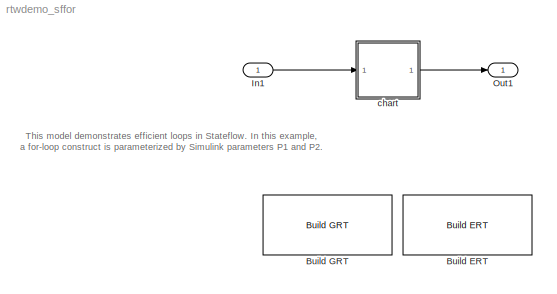
MODEL rtwdemo_sffor
KIND model
CONFIG PostLoadFcn = rtwdemo_sffor_data
BLOCK [Reference] Build ERT  REF=rtwdemowidgets/Build ERT
  Ports = []
  ShowPortLabels = on
  SourceBlock = rtwdemowidgets/Build ERT
  attrib_overrides = {}
BLOCK [Reference] Build GRT  REF=rtwdemowidgets/Build GRT
  Ports = []
  ShowPortLabels = on
  SourceBlock = rtwdemowidgets/Build GRT
  attrib_overrides = {}
BLOCK [Inport] In1
  DataType = single
  IconDisplay = Port number
  LatchInput = off
  Port = 1
BLOCK [Outport] Out1
  BusOutputAsStruct = off
  IconDisplay = Port number
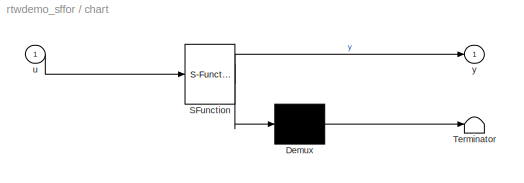
BLOCK [SubSystem] chart
  MaskDescription = Stateflow diagram
  MaskDisplay = plot(sf('Private','sfblk','xIcon'),sf('Private','sfblk','yIcon'));text(0.5,0,sf('Private', 'sfblk', 'tIcon'),'HorizontalAl','Center','VerticalAl','Bottom');
  MaskIconFrame = off
  MaskIconOpaque = off
  MaskIconRotate = none
  MaskIconUnits = autoscale
  MaskSelfModifiable = on
  MaskType = Stateflow
  MinAlgLoopOccurrences = off
  Ports = [1, 1]
  PropExecContextAcrossSSBoundary = on
  RTWSystemCode = Auto
  TreatAsAtomicUnit = off
BLOCK [Demux] chart/ Demux 
  Outputs = 1
  Ports = [1, 1]
BLOCK [S-Function] chart/ SFunction 
  FunctionName = sf_sfun
  Parameters = P1,P2
  PortCounts = [1 2]
  Ports = [1, 2]
  Tag = Stateflow S-Function rtwdemo_sffor 1
BLOCK [Terminator] chart/ Terminator 
BLOCK [Inport] chart/u
  IconDisplay = Port number
  LatchInput = off
  Port = 1
BLOCK [Outport] chart/y
  BusOutputAsStruct = off
  IconDisplay = Port number
ANNOTATION (root): This model demonstrates efficient loops in Stateflow. In this example,\na for-loop construct is parameterized by Simulink parameters P1 and P2.
LINE In1:1 -> chart:1
LINE chart/ Demux :1 -> chart/ Terminator :1
LINE chart/ SFunction :1 -> chart/ Demux :1
LINE chart/ SFunction :2 -> chart/y:1
LINE chart/u:1 -> chart/ SFunction :1
LINE chart:1 -> Out1:1
CHART chart states=1 transitions=4
  STATE_LABEL 'f'
